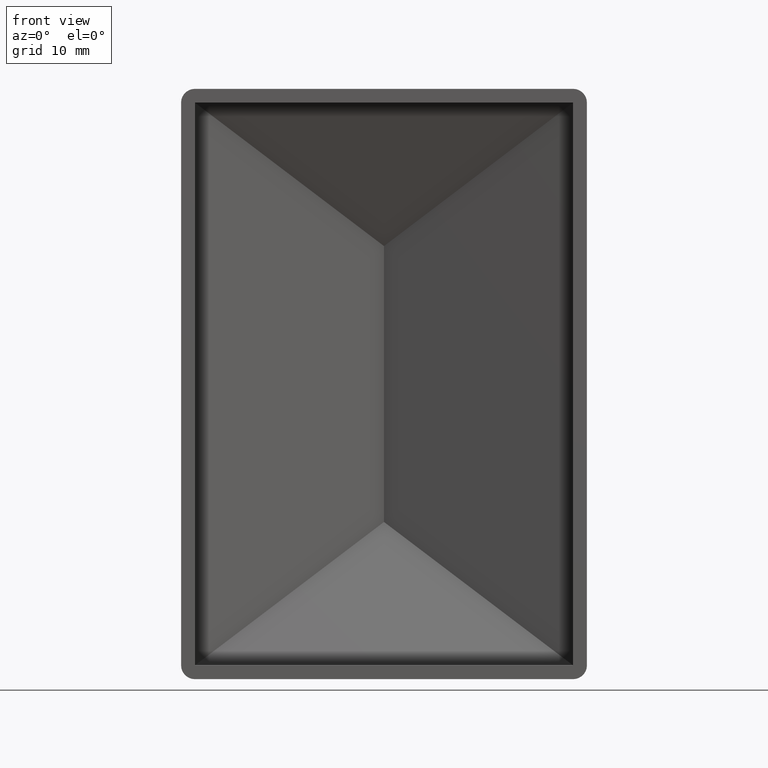
[diagram: clean part render]
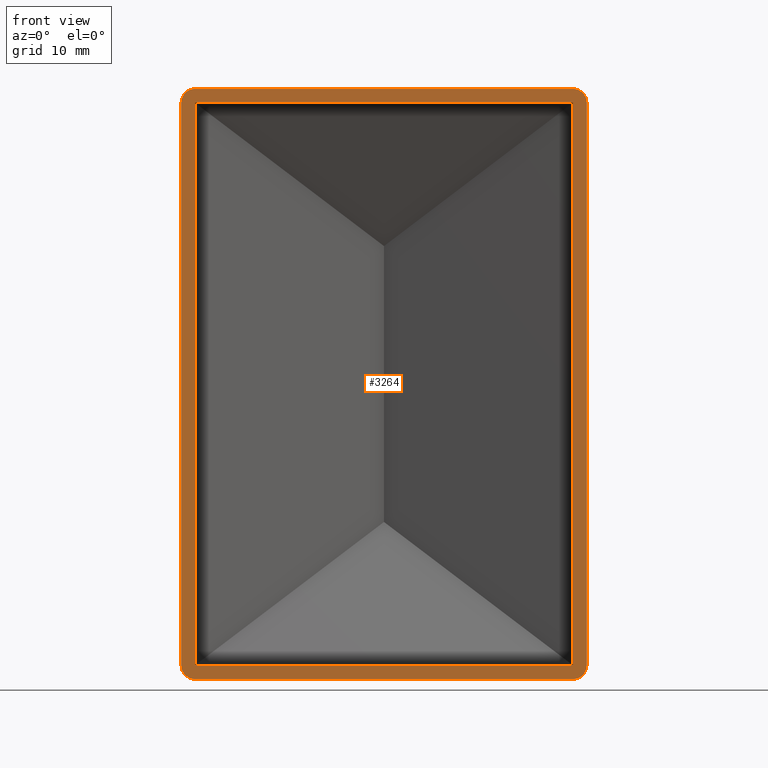
[diagram: same view with one face highlighted and labeled with its STEP entity id]
A machine part, front view. The second image highlights one B-rep face of the part: STEP entity #3264.
In plain terms, the highlighted planar face has unit normal (0, 1, 0).
Its self-contained STEP definition (entity closure, byte-faithful):
#145 = VECTOR ( 'NONE', #5232, 1000.000000000000000 ) ;
#190 = CARTESIAN_POINT ( 'NONE',  ( -20.50000000000000355, 0.000000000000000000, -30.50000000000000000 ) ) ;
#205 = AXIS2_PLACEMENT_3D ( 'NONE', #1194, #1098, #10897 ) ;
#463 = CARTESIAN_POINT ( 'NONE',  ( 22.00000000000000711, 0.000000000000000000, 30.50000000000000000 ) ) ;
#580 = VECTOR ( 'NONE', #8760, 1000.000000000000000 ) ;
#587 = ORIENTED_EDGE ( 'NONE', *, *, #12017, .T. ) ;
#1098 = DIRECTION ( 'NONE',  ( -0.000000000000000000, -1.000000000000000000, -0.000000000000000000 ) ) ;
#1194 = CARTESIAN_POINT ( 'NONE',  ( 20.49999999999998934, 0.000000000000000000, -30.50000000000000000 ) ) ;
#1253 = DIRECTION ( 'NONE',  ( -0.000000000000000000, -1.000000000000000000, -0.000000000000000000 ) ) ;
#1305 = CARTESIAN_POINT ( 'NONE',  ( -20.50000000000000355, 0.000000000000000000, -32.00000000000000000 ) ) ;
#1404 = CIRCLE ( 'NONE', #12908, 1.500000000000001332 ) ;
#1661 = CARTESIAN_POINT ( 'NONE',  ( 20.49999999999998934, 0.000000000000000000, -30.50000000000000000 ) ) ;
#1692 = VERTEX_POINT ( 'NONE', #10917 ) ;
#1769 = CARTESIAN_POINT ( 'NONE',  ( -20.49999999999999645, 0.000000000000000000, 30.50000000000000000 ) ) ;
#1781 = CARTESIAN_POINT ( 'NONE',  ( -20.49999999999999645, 0.000000000000000000, 30.50000000000000000 ) ) ;
#1913 = CARTESIAN_POINT ( 'NONE',  ( 20.49999999999998934, 0.000000000000000000, -32.00000000000000000 ) ) ;
#1914 = CARTESIAN_POINT ( 'NONE',  ( 20.50000000000000355, 0.000000000000000000, 30.50000000000000000 ) ) ;
#1977 = EDGE_CURVE ( 'NONE', #12239, #1692, #4679, .T. ) ;
#2053 = LINE ( 'NONE', #1305, #2734 ) ;
#2695 = PLANE ( 'NONE',  #11296 ) ;
#2734 = VECTOR ( 'NONE', #13187, 1000.000000000000000 ) ;
#2802 = LINE ( 'NONE', #11396, #12217 ) ;
#2845 = VERTEX_POINT ( 'NONE', #10707 ) ;
#2904 = VERTEX_POINT ( 'NONE', #1913 ) ;
#2916 = DIRECTION ( 'NONE',  ( -2.168404344971009115E-16, 0.000000000000000000, -1.000000000000000000 ) ) ;
#3102 = EDGE_CURVE ( 'NONE', #2904, #1692, #3121, .T. ) ;
#3121 = CIRCLE ( 'NONE', #205, 1.500000000000001332 ) ;
#3146 = CARTESIAN_POINT ( 'NONE',  ( -22.00000000000000711, 0.000000000000000000, -30.50000000000000000 ) ) ;
#3219 = ORIENTED_EDGE ( 'NONE', *, *, #3484, .T. ) ;
#3264 = ADVANCED_FACE ( 'NONE', ( #9799, #6386 ), #2695, .F. ) ;
#3484 = EDGE_CURVE ( 'NONE', #9362, #4371, #6717, .T. ) ;
#3734 = DIRECTION ( 'NONE',  ( 0.000000000000000000, -0.000000000000000000, 1.000000000000000000 ) ) ;
#3919 = ORIENTED_EDGE ( 'NONE', *, *, #14148, .F. ) ;
#3955 = AXIS2_PLACEMENT_3D ( 'NONE', #190, #1253, #8963 ) ;
#3995 = ORIENTED_EDGE ( 'NONE', *, *, #1977, .F. ) ;
#4009 = CARTESIAN_POINT ( 'NONE',  ( -22.00000000000000000, 0.000000000000000000, 30.50000000000000000 ) ) ;
#4077 = VERTEX_POINT ( 'NONE', #4009 ) ;
#4169 = VECTOR ( 'NONE', #10536, 1000.000000000000000 ) ;
#4172 = EDGE_CURVE ( 'NONE', #12239, #2845, #13911, .T. ) ;
#4286 = DIRECTION ( 'NONE',  ( -1.000000000000000000, 0.000000000000000000, 0.000000000000000000 ) ) ;
#4299 = EDGE_CURVE ( 'NONE', #7122, #2845, #13731, .T. ) ;
#4371 = VERTEX_POINT ( 'NONE', #4402 ) ;
#4396 = CARTESIAN_POINT ( 'NONE',  ( 21.99999999999999289, 0.000000000000000000, -32.00000000000000000 ) ) ;
#4402 = CARTESIAN_POINT ( 'NONE',  ( -20.50000000000000355, 0.000000000000000000, -32.00000000000000000 ) ) ;
#4454 = EDGE_CURVE ( 'NONE', #7122, #4077, #1404, .T. ) ;
#4567 = ORIENTED_EDGE ( 'NONE', *, *, #14165, .T. ) ;
#4679 = LINE ( 'NONE', #4396, #580 ) ;
#5081 = CARTESIAN_POINT ( 'NONE',  ( 20.50000000000000355, 0.000000000000000000, 30.50000000000000000 ) ) ;
#5208 = DIRECTION ( 'NONE',  ( 0.000000000000000000, 0.000000000000000000, 1.000000000000000000 ) ) ;
#5232 = DIRECTION ( 'NONE',  ( 1.084202172485504434E-16, 0.000000000000000000, 1.000000000000000000 ) ) ;
#5481 = EDGE_CURVE ( 'NONE', #14157, #14189, #12540, .T. ) ;
#5943 = CARTESIAN_POINT ( 'NONE',  ( 0.000000000000000000, 0.000000000000000000, 0.000000000000000000 ) ) ;
#6033 = EDGE_CURVE ( 'NONE', #9767, #14157, #2053, .T. ) ;
#6319 = CARTESIAN_POINT ( 'NONE',  ( -22.00000000000000000, 0.000000000000000000, 32.00000000000000000 ) ) ;
#6322 = VECTOR ( 'NONE', #13943, 1000.000000000000000 ) ;
#6331 = ORIENTED_EDGE ( 'NONE', *, *, #6033, .T. ) ;
#6386 = FACE_OUTER_BOUND ( 'NONE', #7295, .T. ) ;
#6512 = EDGE_CURVE ( 'NONE', #9362, #4077, #11791, .T. ) ;
#6592 = LINE ( 'NONE', #9883, #10017 ) ;
#6717 = CIRCLE ( 'NONE', #3955, 1.500000000000001332 ) ;
#7060 = LINE ( 'NONE', #9194, #4169 ) ;
#7122 = VERTEX_POINT ( 'NONE', #11184 ) ;
#7295 = EDGE_LOOP ( 'NONE', ( #3919, #13220, #3995, #13162, #9514, #9204, #8363, #3219 ) ) ;
#7621 = EDGE_LOOP ( 'NONE', ( #4567, #587, #6331, #13889 ) ) ;
#8092 = VECTOR ( 'NONE', #13117, 1000.000000000000000 ) ;
#8363 = ORIENTED_EDGE ( 'NONE', *, *, #6512, .F. ) ;
#8411 = DIRECTION ( 'NONE',  ( -0.000000000000000000, -1.000000000000000000, -0.000000000000000000 ) ) ;
#8760 = DIRECTION ( 'NONE',  ( -2.168404344971008868E-16, -0.000000000000000000, -1.000000000000000000 ) ) ;
#8963 = DIRECTION ( 'NONE',  ( 0.000000000000000000, 0.000000000000000000, 1.000000000000000000 ) ) ;
#9194 = CARTESIAN_POINT ( 'NONE',  ( -22.00000000000000711, 0.000000000000000000, -32.00000000000000000 ) ) ;
#9204 = ORIENTED_EDGE ( 'NONE', *, *, #4454, .T. ) ;
#9362 = VERTEX_POINT ( 'NONE', #3146 ) ;
#9514 = ORIENTED_EDGE ( 'NONE', *, *, #4299, .F. ) ;
#9549 = CARTESIAN_POINT ( 'NONE',  ( -22.00000000000000000, 0.000000000000000000, 30.50000000000000000 ) ) ;
#9767 = VERTEX_POINT ( 'NONE', #14197 ) ;
#9799 = FACE_BOUND ( 'NONE', #7621, .T. ) ;
#9883 = CARTESIAN_POINT ( 'NONE',  ( -22.00000000000000711, 0.000000000000000000, -30.50000000000000000 ) ) ;
#10017 = VECTOR ( 'NONE', #4286, 1000.000000000000000 ) ;
#10209 = AXIS2_PLACEMENT_3D ( 'NONE', #1914, #12960, #5208 ) ;
#10309 = DIRECTION ( 'NONE',  ( 0.000000000000000000, 1.000000000000000000, 0.000000000000000000 ) ) ;
#10536 = DIRECTION ( 'NONE',  ( -1.000000000000000000, -0.000000000000000000, -0.000000000000000000 ) ) ;
#10707 = CARTESIAN_POINT ( 'NONE',  ( 20.50000000000000355, 0.000000000000000000, 32.00000000000000000 ) ) ;
#10897 = DIRECTION ( 'NONE',  ( 0.000000000000000000, 0.000000000000000000, 1.000000000000000000 ) ) ;
#10917 = CARTESIAN_POINT ( 'NONE',  ( 21.99999999999999289, 0.000000000000000000, -30.50000000000000000 ) ) ;
#11184 = CARTESIAN_POINT ( 'NONE',  ( -20.49999999999999645, 0.000000000000000000, 32.00000000000000000 ) ) ;
#11296 = AXIS2_PLACEMENT_3D ( 'NONE', #5943, #10309, #3734 ) ;
#11396 = CARTESIAN_POINT ( 'NONE',  ( 20.49999999999998934, 0.000000000000000000, -32.00000000000000000 ) ) ;
#11658 = DIRECTION ( 'NONE',  ( 0.000000000000000000, 0.000000000000000000, 1.000000000000000000 ) ) ;
#11786 = CARTESIAN_POINT ( 'NONE',  ( -22.00000000000000711, 0.000000000000000000, -32.00000000000000000 ) ) ;
#11791 = LINE ( 'NONE', #11786, #145 ) ;
#12017 = EDGE_CURVE ( 'NONE', #12227, #9767, #6592, .T. ) ;
#12217 = VECTOR ( 'NONE', #2916, 1000.000000000000000 ) ;
#12227 = VERTEX_POINT ( 'NONE', #1661 ) ;
#12239 = VERTEX_POINT ( 'NONE', #463 ) ;
#12540 = LINE ( 'NONE', #9549, #6322 ) ;
#12908 = AXIS2_PLACEMENT_3D ( 'NONE', #1769, #8411, #11658 ) ;
#12960 = DIRECTION ( 'NONE',  ( -0.000000000000000000, -1.000000000000000000, -0.000000000000000000 ) ) ;
#13117 = DIRECTION ( 'NONE',  ( 1.000000000000000000, 0.000000000000000000, 0.000000000000000000 ) ) ;
#13162 = ORIENTED_EDGE ( 'NONE', *, *, #4172, .T. ) ;
#13187 = DIRECTION ( 'NONE',  ( 1.084202172485504557E-16, -0.000000000000000000, 1.000000000000000000 ) ) ;
#13220 = ORIENTED_EDGE ( 'NONE', *, *, #3102, .T. ) ;
#13731 = LINE ( 'NONE', #6319, #8092 ) ;
#13889 = ORIENTED_EDGE ( 'NONE', *, *, #5481, .T. ) ;
#13911 = CIRCLE ( 'NONE', #10209, 1.500000000000001332 ) ;
#13943 = DIRECTION ( 'NONE',  ( 1.000000000000000000, -0.000000000000000000, 0.000000000000000000 ) ) ;
#14148 = EDGE_CURVE ( 'NONE', #2904, #4371, #7060, .T. ) ;
#14157 = VERTEX_POINT ( 'NONE', #1781 ) ;
#14165 = EDGE_CURVE ( 'NONE', #14189, #12227, #2802, .T. ) ;
#14189 = VERTEX_POINT ( 'NONE', #5081 ) ;
#14197 = CARTESIAN_POINT ( 'NONE',  ( -20.50000000000000355, 0.000000000000000000, -30.50000000000000000 ) ) ;